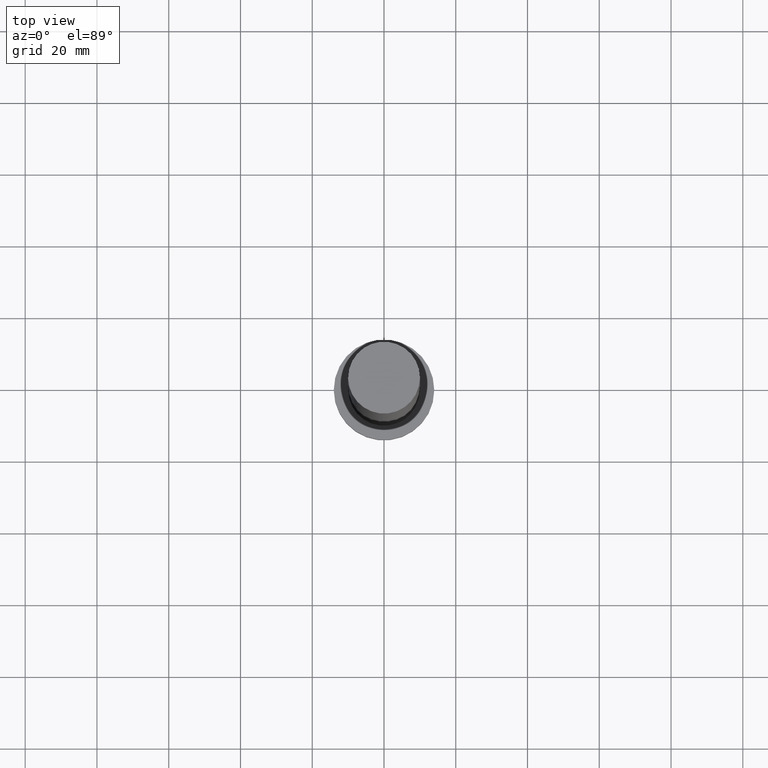
[diagram: clean part render]
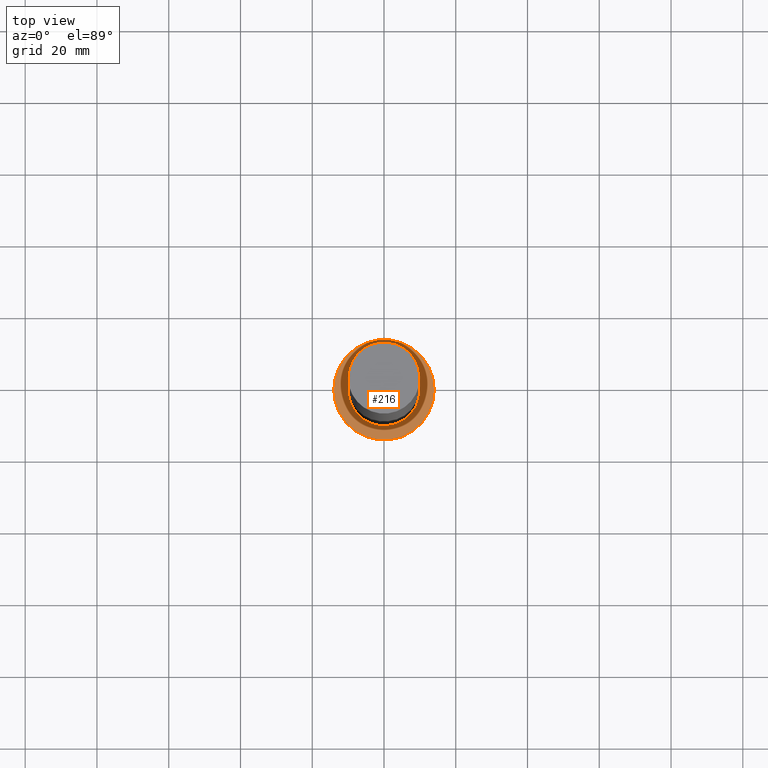
[diagram: same view with one face highlighted and labeled with its STEP entity id]
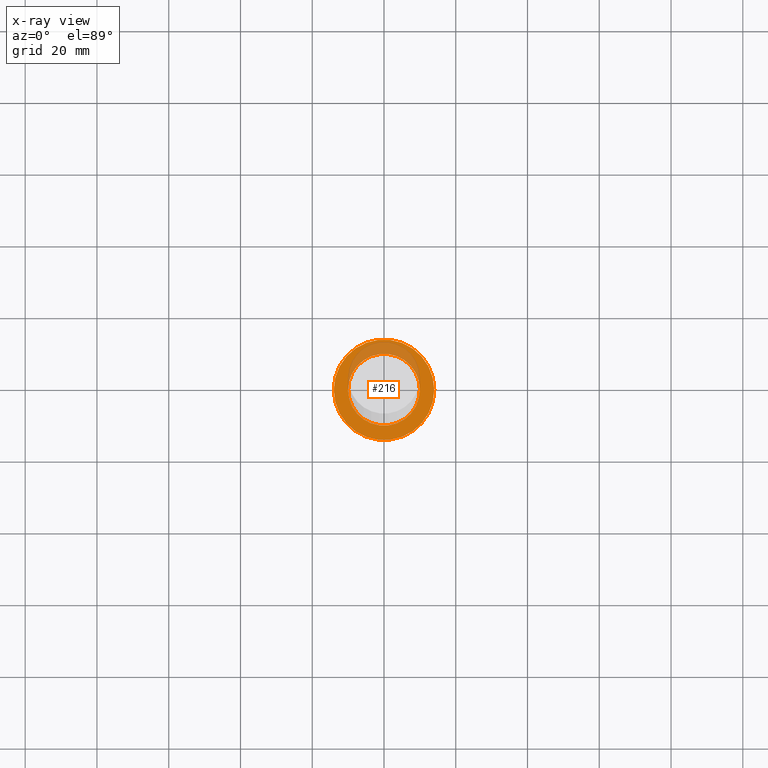
[diagram: x-ray of the same camera — body ghosted, the highlighted face saturated]
A machine part, top view. The second image highlights one B-rep face of the part: STEP entity #216.
The next image is the same camera in x-ray: the body ghosted, the highlighted face saturated — about 23% of this face is hidden behind the body in this view.
In plain terms, the highlighted planar face has unit normal (0, 0, 1).
Its self-contained STEP definition (entity closure, byte-faithful):
#1 = CIRCLE ( 'NONE', #232, 14.00000000000000000 ) ;
#3 = EDGE_CURVE ( 'NONE', #47, #229, #73, .T. ) ;
#10 = CARTESIAN_POINT ( 'NONE',  ( 10.00000000000000000, 1.224646799147353256E-15, 7.000000000000000000 ) ) ;
#16 = ORIENTED_EDGE ( 'NONE', *, *, #198, .F. ) ;
#20 = VERTEX_POINT ( 'NONE', #244 ) ;
#25 = DIRECTION ( 'NONE',  ( 0.000000000000000000, 0.000000000000000000, 1.000000000000000000 ) ) ;
#26 = DIRECTION ( 'NONE',  ( 0.000000000000000000, 0.000000000000000000, 1.000000000000000000 ) ) ;
#44 = DIRECTION ( 'NONE',  ( 1.000000000000000000, 0.000000000000000000, 0.000000000000000000 ) ) ;
#46 = DIRECTION ( 'NONE',  ( 1.000000000000000000, 0.000000000000000000, -0.000000000000000000 ) ) ;
#47 = VERTEX_POINT ( 'NONE', #10 ) ;
#59 = FACE_OUTER_BOUND ( 'NONE', #87, .T. ) ;
#61 = DIRECTION ( 'NONE',  ( 1.000000000000000000, 0.000000000000000000, 0.000000000000000000 ) ) ;
#67 = AXIS2_PLACEMENT_3D ( 'NONE', #223, #162, #210 ) ;
#70 = ORIENTED_EDGE ( 'NONE', *, *, #159, .T. ) ;
#73 = CIRCLE ( 'NONE', #234, 10.00000000000000000 ) ;
#77 = CARTESIAN_POINT ( 'NONE',  ( 14.00000000000000000, 1.714505518806294638E-15, 7.000000000000000000 ) ) ;
#79 = ORIENTED_EDGE ( 'NONE', *, *, #126, .T. ) ;
#83 = DIRECTION ( 'NONE',  ( 0.000000000000000000, 0.000000000000000000, 1.000000000000000000 ) ) ;
#87 = EDGE_LOOP ( 'NONE', ( #70, #79 ) ) ;
#97 = DIRECTION ( 'NONE',  ( 1.000000000000000000, 0.000000000000000000, 0.000000000000000000 ) ) ;
#100 = CIRCLE ( 'NONE', #117, 10.00000000000000000 ) ;
#106 = EDGE_LOOP ( 'NONE', ( #16, #177 ) ) ;
#112 = VERTEX_POINT ( 'NONE', #77 ) ;
#113 = PLANE ( 'NONE',  #236 ) ;
#117 = AXIS2_PLACEMENT_3D ( 'NONE', #138, #25, #61 ) ;
#123 = CARTESIAN_POINT ( 'NONE',  ( -10.00000000000000000, 0.000000000000000000, 7.000000000000000000 ) ) ;
#126 = EDGE_CURVE ( 'NONE', #112, #20, #1, .T. ) ;
#135 = CARTESIAN_POINT ( 'NONE',  ( 0.000000000000000000, 0.000000000000000000, 7.000000000000000000 ) ) ;
#138 = CARTESIAN_POINT ( 'NONE',  ( 0.000000000000000000, 0.000000000000000000, 7.000000000000000000 ) ) ;
#159 = EDGE_CURVE ( 'NONE', #20, #112, #180, .T. ) ;
#162 = DIRECTION ( 'NONE',  ( 0.000000000000000000, 0.000000000000000000, 1.000000000000000000 ) ) ;
#177 = ORIENTED_EDGE ( 'NONE', *, *, #3, .F. ) ;
#180 = CIRCLE ( 'NONE', #67, 14.00000000000000000 ) ;
#183 = FACE_BOUND ( 'NONE', #106, .T. ) ;
#195 = CARTESIAN_POINT ( 'NONE',  ( 0.000000000000000000, 0.000000000000000000, 7.000000000000000000 ) ) ;
#198 = EDGE_CURVE ( 'NONE', #229, #47, #100, .T. ) ;
#209 = DIRECTION ( 'NONE',  ( 0.000000000000000000, 0.000000000000000000, 1.000000000000000000 ) ) ;
#210 = DIRECTION ( 'NONE',  ( 1.000000000000000000, 0.000000000000000000, 0.000000000000000000 ) ) ;
#216 = ADVANCED_FACE ( 'NONE', ( #183, #59 ), #113, .T. ) ;
#223 = CARTESIAN_POINT ( 'NONE',  ( 0.000000000000000000, 0.000000000000000000, 7.000000000000000000 ) ) ;
#226 = CARTESIAN_POINT ( 'NONE',  ( 0.000000000000000000, 0.000000000000000000, 7.000000000000000000 ) ) ;
#229 = VERTEX_POINT ( 'NONE', #123 ) ;
#232 = AXIS2_PLACEMENT_3D ( 'NONE', #135, #26, #97 ) ;
#234 = AXIS2_PLACEMENT_3D ( 'NONE', #226, #209, #44 ) ;
#236 = AXIS2_PLACEMENT_3D ( 'NONE', #195, #83, #46 ) ;
#244 = CARTESIAN_POINT ( 'NONE',  ( -14.00000000000000000, 0.000000000000000000, 7.000000000000000000 ) ) ;